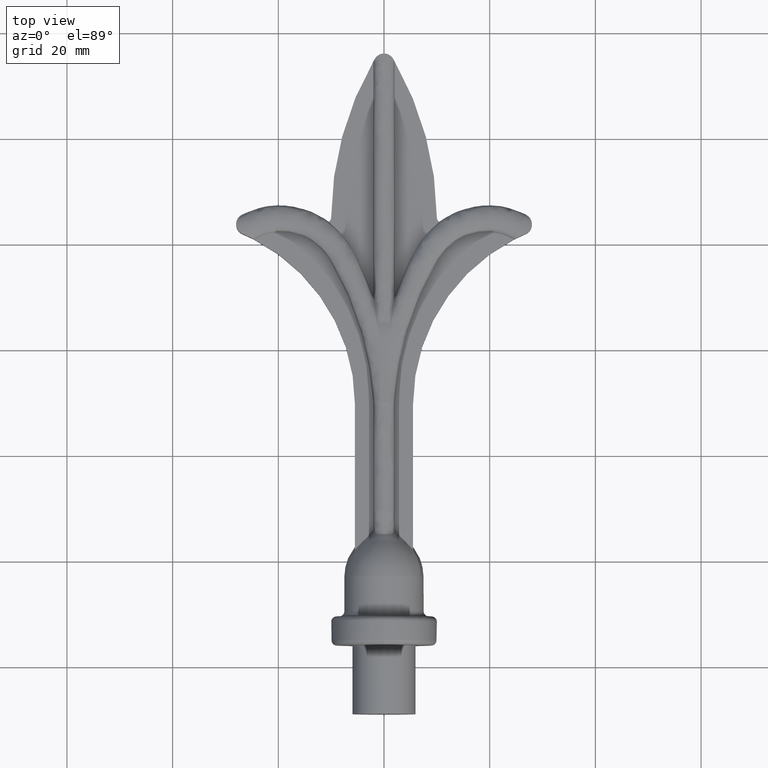
[diagram: clean part render]
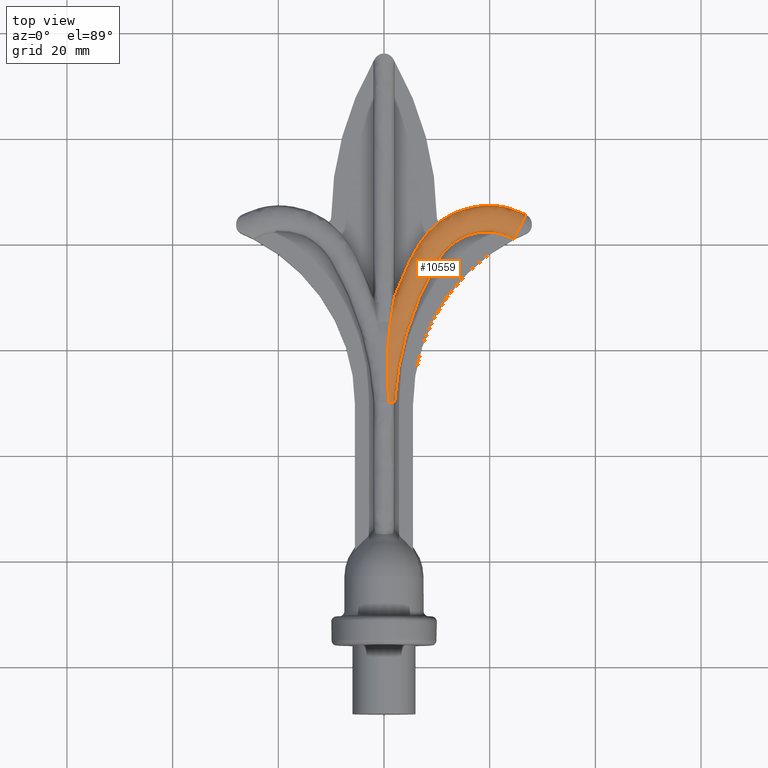
[diagram: same view with one face highlighted and labeled with its STEP entity id]
A machine part, top view. The second image highlights one B-rep face of the part: STEP entity #10559.
In plain terms, the highlighted face is a freeform B-spline surface patch.
Its self-contained STEP definition (entity closure, byte-faithful):
#50 = CARTESIAN_POINT ( 'NONE',  ( 22.65377399519052304, 21.90442117620150597, 2.015428482154284495 ) ) ;
#104 = CARTESIAN_POINT ( 'NONE',  ( 24.61884789897032277, 22.84009828689383426, 0.9380501365361845201 ) ) ;
#128 = ORIENTED_EDGE ( 'NONE', *, *, #1518, .F. ) ;
#171 = CARTESIAN_POINT ( 'NONE',  ( 9.388767710111718401, 18.61805544953372049, 1.083574775856823935 ) ) ;
#193 = CARTESIAN_POINT ( 'NONE',  ( 1.822275046699542647E-13, -9.999899012340767612, 3.500002856754159009 ) ) ;
#327 = B_SPLINE_CURVE_WITH_KNOTS ( 'NONE', 3,
 ( #4505, #12297, #8937, #6717, #6763, #3381, #12349, #10037, #13542, #974, #3482, #8988, #5577, #1079, #1024, #13636, #8884, #5634, #1182, #13491, #2328, #14633, #2229, #6671, #11344, #6816, #9042, #10083, #10130, #2278, #7910, #2127, #6872, #1134, #4606, #11294, #10229, #11151 ),
 .UNSPECIFIED., .F., .F.,
 ( 4, 2, 2, 2, 2, 2, 2, 2, 2, 2, 2, 2, 2, 2, 2, 2, 2, 2, 4 ),
 ( 1.599647270592087204E-07, 0.001412384367972311511, 0.002118496569594932512, 0.002824608771217553948, 0.004236833174462796385, 0.005649057577708038388, 0.007061281980953282127, 0.008473506384198524130, 0.009885730787443767001, 0.01129795519068900987, 0.01412240399717949388, 0.01553462840042473155, 0.01694685280366997268, 0.01977130161016044455, 0.02259575041665091641, 0.02824464802963186014, 0.03389354564261280733, 0.03954244325559375106, 0.04519134086857468785 ),
 .UNSPECIFIED. ) ;
#357 = CARTESIAN_POINT ( 'NONE',  ( 24.89631523859468487, 21.42124500145134292, 1.263273577513313262 ) ) ;
#384 = CARTESIAN_POINT ( 'NONE',  ( 1.664991924502235321, 8.081150150582923075, 2.946182603805149736 ) ) ;
#392 = CARTESIAN_POINT ( 'NONE',  ( 3.024429506837891690, 12.65772292413269007, 2.249999999999999112 ) ) ;
#401 = CARTESIAN_POINT ( 'NONE',  ( 9.227220437918614238, 18.70524337115989510, 1.047151908742425030 ) ) ;
#430 = CARTESIAN_POINT ( 'NONE',  ( 0.8170894112943596355, 1.555991863244106321, 3.392483868747679487 ) ) ;
#446 = CARTESIAN_POINT ( 'NONE',  ( 25.38313255906372845, 22.42507282063571949, 0.9437082161729408725 ) ) ;
#453 = CARTESIAN_POINT ( 'NONE',  ( 10.97097425747700683, 23.99402529289793762, 1.537978110906352835 ) ) ;
#488 = CARTESIAN_POINT ( 'NONE',  ( 10.47475883363148341, 24.14904658344193322, 2.249999999999999556 ) ) ;
#496 = CARTESIAN_POINT ( 'NONE',  ( -0.9355291820909846789, -10.00000000000000000, 1.014998227861704905 ) ) ;
#539 = CARTESIAN_POINT ( 'NONE',  ( 8.842201653637049574, 18.81535705966615524, 3.678308501744723458 ) ) ;
#551 = ORIENTED_EDGE ( 'NONE', *, *, #10067, .T. ) ;
#592 = CARTESIAN_POINT ( 'NONE',  ( 0.8716206655284397531, -5.578634823807737675, 3.586626112572214087 ) ) ;
#600 = CARTESIAN_POINT ( 'NONE',  ( 11.35047031905619264, 24.05453771702369892, 1.427759834671830763 ) ) ;
#643 = CARTESIAN_POINT ( 'NONE',  ( 25.11752299891844942, 21.87738017638413979, 3.426316611016624769 ) ) ;
#861 = CARTESIAN_POINT ( 'NONE',  ( -0.05568797769088915106, 3.619292378204540750, 1.053908288578327523 ) ) ;
#867 = CARTESIAN_POINT ( 'NONE',  ( 11.58296119081805386, 24.18750000000000355, 1.417579424405996935 ) ) ;
#888 = CARTESIAN_POINT ( 'NONE',  ( -0.1641460125971318795, 3.634865088626292540, 1.103582228979153923 ) ) ;
#911 = CARTESIAN_POINT ( 'NONE',  ( -1.312873167320049994, -5.455709696546035659, 1.788320154799647455 ) ) ;
#962 = CARTESIAN_POINT ( 'NONE',  ( 20.40607271867143524, 22.29341308197831140, 2.184910187092856226 ) ) ;
#974 = CARTESIAN_POINT ( 'NONE',  ( 20.19289493986696016, 22.25437071873053441, 2.249999999999998224 ) ) ;
#990 = CARTESIAN_POINT ( 'NONE',  ( 22.65076956668649544, 21.89342035261168817, 2.049504428314659954 ) ) ;
#1007 = EDGE_CURVE ( 'NONE', #8648, #14465, #11021, .T. ) ;
#1009 = CARTESIAN_POINT ( 'NONE',  ( 24.62448220133751775, 20.86071941310699174, 4.740606538142392523 ) ) ;
#1014 = CARTESIAN_POINT ( 'NONE',  ( -1.716218652508794795, -10.00000000000000000, 1.408882310923131431 ) ) ;
#1018 = CARTESIAN_POINT ( 'NONE',  ( 25.45106628192353071, 26.09867378031954388, 2.085502314152475112 ) ) ;
#1024 = CARTESIAN_POINT ( 'NONE',  ( 16.94133092385697736, 21.97797578725353773, 2.250000000000002220 ) ) ;
#1067 = CARTESIAN_POINT ( 'NONE',  ( 18.07317238807855730, 22.48138342559525071, 1.719248921628675486 ) ) ;
#1071 = EDGE_CURVE ( 'NONE', #14441, #12958, #7727, .T. ) ;
#1079 = CARTESIAN_POINT ( 'NONE',  ( 17.40307058314913391, 22.08023255681069585, 2.249999999999997335 ) ) ;
#1091 =( BOUNDED_CURVE ( )  B_SPLINE_CURVE ( 3, ( #3022, #1009, #13273, #3211 ),
 .UNSPECIFIED., .F., .F. ) 
 B_SPLINE_CURVE_WITH_KNOTS ( ( 4, 4 ),
 ( 3.144929692913711161, 6.281076163550978642 ),
 .UNSPECIFIED. ) 
 CURVE ( )  GEOMETRIC_REPRESENTATION_ITEM ( )  RATIONAL_B_SPLINE_CURVE ( ( 1.000000000000000000, 0.3351487254072492150, 0.3351487254072492150, 1.000000000000000000 ) ) 
 REPRESENTATION_ITEM ( '' )  );
#1134 = CARTESIAN_POINT ( 'NONE',  ( 3.291206529742098930, -0.7055149666553134358, 2.249999999999999112 ) ) ;
#1148 = CARTESIAN_POINT ( 'NONE',  ( 12.19823958235329009, 21.13294287834875007, 1.164823367633861073 ) ) ;
#1182 = CARTESIAN_POINT ( 'NONE',  ( 14.34844947528617709, 20.95491050503660091, 2.249999999999999556 ) ) ;
#1197 = CARTESIAN_POINT ( 'NONE',  ( -1.930441643308337119, -10.00000000000000178, 2.582676655377620367 ) ) ;
#1249 = CARTESIAN_POINT ( 'NONE',  ( -0.4106763324448918784, 3.667676481009810807, 1.239095013416890101 ) ) ;
#1511 = CARTESIAN_POINT ( 'NONE',  ( 5.222767065321834323, 12.74379963401825222, 0.9533735591261615072 ) ) ;
#1518 = EDGE_CURVE ( 'NONE', #12958, #13013, #13508, .T. ) ;
#1544 = CARTESIAN_POINT ( 'NONE',  ( 1.093026864984118385, 4.179168361879508353, 3.300909164943323759 ) ) ;
#1551 = CARTESIAN_POINT ( 'NONE',  ( 4.721898802155293673, 16.46859264134813117, 2.249999999999999112 ) ) ;
#1558 = CARTESIAN_POINT ( 'NONE',  ( 7.909335266317044422, 19.40967726941924454, 0.9402178467507972259 ) ) ;
#1592 = CARTESIAN_POINT ( 'NONE',  ( 1.999999999999999556, 10.07069710352590342, 2.305787425040668914 ) ) ;
#1605 = CARTESIAN_POINT ( 'NONE',  ( 1.871832753549289130, 2.913804294512897464, 3.917994145229519720 ) ) ;
#1638 = CARTESIAN_POINT ( 'NONE',  ( 0.7984979242254491849, -8.554332492686521405, 3.396158515704875480 ) ) ;
#1653 = CARTESIAN_POINT ( 'NONE',  ( 1.970177633994882660, -10.00000000000000000, 1.527363550076654253 ) ) ;
#1664 = CARTESIAN_POINT ( 'NONE',  ( 10.47444242597680386, 24.14924188241173653, 2.115527743679268990 ) ) ;
#1703 = CARTESIAN_POINT ( 'NONE',  ( 16.95275011779455809, 27.51746340972101734, 2.267473239405557894 ) ) ;
#1743 = CARTESIAN_POINT ( 'NONE',  ( 0.8247743503367599427, -8.993529385132280396, 3.388833680604617093 ) ) ;
#1755 = CARTESIAN_POINT ( 'NONE',  ( 25.91516700378811677, 26.10899808485558538, 1.730959131522782357 ) ) ;
#1795 = CARTESIAN_POINT ( 'NONE',  ( 20.44066856065811422, 27.68275755157245044, 1.950683274000023282 ) ) ;
#2012 = CARTESIAN_POINT ( 'NONE',  ( -2.000759941483444493, -10.00000000000000000, 2.248500216561841736 ) ) ;
#2017 = CARTESIAN_POINT ( 'NONE',  ( 25.94374917696612570, 25.90887317753631791, 2.198338849799287953 ) ) ;
#2039 = CARTESIAN_POINT ( 'NONE',  ( 9.335186855824044727, 18.64700975306274700, 1.070480611976746932 ) ) ;
#2067 = CARTESIAN_POINT ( 'NONE',  ( 24.62434955295685413, 20.86044588928383092, 2.405581308067329172 ) ) ;
#2117 = CARTESIAN_POINT ( 'NONE',  ( 15.66964733405339416, 21.44164566861273258, 2.189431993116858877 ) ) ;
#2121 = CARTESIAN_POINT ( 'NONE',  ( 19.87221261943530948, 27.00647907467705267, 1.687109739304471390 ) ) ;
#2127 = CARTESIAN_POINT ( 'NONE',  ( 4.725754925820213614, 4.741299643282160581, 2.250000000000000000 ) ) ;
#2163 = CARTESIAN_POINT ( 'NONE',  ( 18.08690987329524091, 22.40414028384342870, 1.813243221279624562 ) ) ;
#2168 = CARTESIAN_POINT ( 'NONE',  ( 26.01062385125398180, 25.88167126426240827, 2.232124073764892636 ) ) ;
#2221 = CARTESIAN_POINT ( 'NONE',  ( -1.350973762165066372, -5.450231084407701765, 1.849425354973960101 ) ) ;
#2229 = CARTESIAN_POINT ( 'NONE',  ( 11.14895665378619682, 18.26262553370780140, 2.250000000000009770 ) ) ;
#2278 = CARTESIAN_POINT ( 'NONE',  ( 6.703008912361073435, 10.01589497759060521, 2.250000000000000000 ) ) ;
#2292 = CARTESIAN_POINT ( 'NONE',  ( 4.876233005801971387, 12.87845692364086148, 0.9784518285621928158 ) ) ;
#2328 = CARTESIAN_POINT ( 'NONE',  ( 12.42029254657042969, 19.63991412580459084, 2.250000000000036859 ) ) ;
#2342 = CARTESIAN_POINT ( 'NONE',  ( -1.446822619493322915, -5.434067506973638828, 2.069176330081931692 ) ) ;
#2390 = CARTESIAN_POINT ( 'NONE',  ( 23.98246810133187878, 21.23495782725811054, 1.983558742420999943 ) ) ;
#2596 = CARTESIAN_POINT ( 'NONE',  ( 7.112391304558636662, 20.68677348446288988, 2.249999999999999556 ) ) ;
#2643 = CARTESIAN_POINT ( 'NONE',  ( 0.4406985737824424820, -9.987347466049293132, 3.471261713992855213 ) ) ;
#2659 = CARTESIAN_POINT ( 'NONE',  ( 22.81787294985169012, 22.56706617981623708, 1.222995480864877971 ) ) ;
#2667 = CARTESIAN_POINT ( 'NONE',  ( 24.62483542902143441, 20.86144777621306545, 2.102813419555594532 ) ) ;
#2687 = CARTESIAN_POINT ( 'NONE',  ( 0.8490466700974876879, -9.790351625994269114, 3.381771460446505895 ) ) ;
#2693 = CARTESIAN_POINT ( 'NONE',  ( 5.016452664498600278, 17.09870672286848858, 2.250000000000000888 ) ) ;
#2700 = CARTESIAN_POINT ( 'NONE',  ( 22.69301642216343851, 22.05896169989715361, 1.758062451085776079 ) ) ;
#2735 = CARTESIAN_POINT ( 'NONE',  ( 1.877855878971818049, 9.358471240947849878, 2.686654988717040116 ) ) ;
#2741 = CARTESIAN_POINT ( 'NONE',  ( 2.494505320318125552, 11.37125079946095418, 2.250000000000000000 ) ) ;
#2750 = CARTESIAN_POINT ( 'NONE',  ( 11.06399870107107120, 22.21911134735176319, 3.681482465448309593 ) ) ;
#2807 = CARTESIAN_POINT ( 'NONE',  ( 23.85380151575796148, 27.07101698519150546, 1.768976648477818658 ) ) ;
#2854 = CARTESIAN_POINT ( 'NONE',  ( 2.711428649128472479, 3.102266197604552911, 0.8328247424366664875 ) ) ;
#2907 = CARTESIAN_POINT ( 'NONE',  ( 20.38076262851300413, 25.44230529397685103, 3.654752397464813285 ) ) ;
#2953 = CARTESIAN_POINT ( 'NONE',  ( 14.70643963298623547, 23.25330710552000468, 3.650328722034779094 ) ) ;
#3022 = CARTESIAN_POINT ( 'NONE',  ( 24.61697314110987378, 20.84523556333763850, 2.254171646362637116 ) ) ;
#3110 = VERTEX_POINT ( 'NONE', #14480 ) ;
#3169 = CARTESIAN_POINT ( 'NONE',  ( 18.09714335903924010, 22.34266630139766718, 1.908826176771433625 ) ) ;
#3211 = CARTESIAN_POINT ( 'NONE',  ( 26.87271091490941188, 25.49661553200047948, 2.252636452654235288 ) ) ;
#3214 = CARTESIAN_POINT ( 'NONE',  ( 23.96192291912440808, 21.18308984813897311, 2.187444685451927828 ) ) ;
#3216 = CARTESIAN_POINT ( 'NONE',  ( 17.35146987085249393, 26.71544865942527380, 1.595829123001728744 ) ) ;
#3270 = CARTESIAN_POINT ( 'NONE',  ( 24.61677185411122792, 20.84482051075516651, 2.306252604042914101 ) ) ;
#3273 = CARTESIAN_POINT ( 'NONE',  ( 16.12445592444844777, 26.40266229427007616, 1.556082222938761195 ) ) ;
#3321 = CARTESIAN_POINT ( 'NONE',  ( 13.05551225055343068, 20.10660405571876908, 1.896370593148546391 ) ) ;
#3324 = CARTESIAN_POINT ( 'NONE',  ( 25.99529877153481294, 25.88793557697366765, 2.220923145417316391 ) ) ;
#3335 = CARTESIAN_POINT ( 'NONE',  ( 1.384750386415574130, -10.00000000000000000, 3.264617898375323790 ) ) ;
#3346 = CARTESIAN_POINT ( 'NONE',  ( 5.401987172626819600, 12.67375316816916886, 0.9548393975191454830 ) ) ;
#3350 = CARTESIAN_POINT ( 'NONE',  ( 26.01821031367974868, 25.87856042835428383, 2.249999999999999556 ) ) ;
#3369 = CARTESIAN_POINT ( 'NONE',  ( 12.50710470868220980, 20.76895355801833887, 1.354172316034753631 ) ) ;
#3381 = CARTESIAN_POINT ( 'NONE',  ( 22.48052273371741450, 21.81134387635706062, 2.249999999999997780 ) ) ;
#3398 = CARTESIAN_POINT ( 'NONE',  ( -0.1099169951440105153, 3.627078733415416867, 1.078745258778740723 ) ) ;
#3447 = CARTESIAN_POINT ( 'NONE',  ( -1.505269081967836486, -5.405307232543053786, 2.727391122472714535 ) ) ;
#3464 = B_SPLINE_CURVE_WITH_KNOTS ( 'NONE', 3,
 ( #9499, #2741, #392, #6099, #13898, #1551, #2693, #12912, #10583, #6153, #2596, #14031, #9351, #5066, #7279, #488 ),
 .UNSPECIFIED., .F., .F.,
 ( 4, 2, 2, 2, 2, 2, 2, 4 ),
 ( 0.006606490043254385769, 0.01078139490176455509, 0.01286884733101964148, 0.01495629976027472614, 0.01704375218952981080, 0.01913120461878489720, 0.02121865704803998359, 0.02330610947729506652 ),
 .UNSPECIFIED. ) ;
#3482 = CARTESIAN_POINT ( 'NONE',  ( 19.72413120687838273, 22.27856710356394032, 2.250000000000000000 ) ) ;
#3497 = CARTESIAN_POINT ( 'NONE',  ( 6.995281716088951995, 19.88407979996286912, 1.260486643651753891 ) ) ;
#3542 = CARTESIAN_POINT ( 'NONE',  ( -0.5396152933166908916, 3.682753933028929616, 1.328177999582593083 ) ) ;
#3545 = CARTESIAN_POINT ( 'NONE',  ( 26.58834281340381622, 25.62506080716702428, 2.250000000000000444 ) ) ;
#3713 = ORIENTED_EDGE ( 'NONE', *, *, #3902, .F. ) ;
#3751 =( BOUNDED_CURVE ( )  B_SPLINE_CURVE ( 3, ( #10824, #5024, #3937, #5155 ),
 .UNSPECIFIED., .F., .F. ) 
 B_SPLINE_CURVE_WITH_KNOTS ( ( 4, 4 ),
 ( 0.000000000000000000, 0.5086059046726595367 ),
 .UNSPECIFIED. ) 
 CURVE ( )  GEOMETRIC_REPRESENTATION_ITEM ( )  RATIONAL_B_SPLINE_CURVE ( ( 1.000000000000000000, 0.9785592584434594787, 0.9785592584434594787, 1.000000000000000000 ) ) 
 REPRESENTATION_ITEM ( '' )  );
#3785 = CARTESIAN_POINT ( 'NONE',  ( 0.6838425788776076875, -9.964105240841302447, 3.424794776173007538 ) ) ;
#3802 = CARTESIAN_POINT ( 'NONE',  ( 9.063566896346694435, 18.79319770106364729, 1.020559078260759645 ) ) ;
#3836 = CARTESIAN_POINT ( 'NONE',  ( 1.980305355098926245, 9.955703304162607736, 2.429022797495678621 ) ) ;
#3853 = CARTESIAN_POINT ( 'NONE',  ( 20.44188111118632278, 23.30753202606006980, 1.106788655521255382 ) ) ;
#3898 = CARTESIAN_POINT ( 'NONE',  ( 0.2828024988935784467, -5.622952954216868804, 0.9541399073106032747 ) ) ;
#3902 = EDGE_CURVE ( 'NONE', #9479, #8648, #8520, .T. ) ;
#3937 = CARTESIAN_POINT ( 'NONE',  ( 1.913767255991325911, -10.00000000000000178, 2.671581419846952965 ) ) ;
#3941 = CARTESIAN_POINT ( 'NONE',  ( 1.156218319877358791, -10.00000000000000000, 3.481361021246797360 ) ) ;
#3973 = CARTESIAN_POINT ( 'NONE',  ( 1.459315394766676377, 6.787959087721364249, 3.116524587594440288 ) ) ;
#3987 = CARTESIAN_POINT ( 'NONE',  ( 20.39879148022120603, 26.86539880480056652, 3.279017007889420299 ) ) ;
#4009 = ORIENTED_EDGE ( 'NONE', *, *, #1007, .F. ) ;
#4023 = CARTESIAN_POINT ( 'NONE',  ( 1.993991028183335956, 10.03549112986107339, 2.353936078871035065 ) ) ;
#4035 = CARTESIAN_POINT ( 'NONE',  ( 20.37848032285045008, 23.02279457361767712, 3.292293112976904190 ) ) ;
#4295 = CARTESIAN_POINT ( 'NONE',  ( 23.96664801034435044, 21.19502457257676653, 2.119327766726151641 ) ) ;
#4342 = CARTESIAN_POINT ( 'NONE',  ( 15.32834118639918941, 22.18365385408029411, 1.430685360076817680 ) ) ;
#4387 = CARTESIAN_POINT ( 'NONE',  ( -1.244935185496606866, -5.464694607167846385, 1.701106015151840234 ) ) ;
#4392 = CARTESIAN_POINT ( 'NONE',  ( 24.54829524349028347, 26.39735971179313623, 1.948013301117176521 ) ) ;
#4403 = CARTESIAN_POINT ( 'NONE',  ( 0.7435887981399322832, -10.00000000000000000, 3.499999999999999556 ) ) ;
#4440 = CARTESIAN_POINT ( 'NONE',  ( 12.59304986706982454, 20.66603194893808393, 1.427857428819797159 ) ) ;
#4443 = CARTESIAN_POINT ( 'NONE',  ( 15.21547537418272711, 26.10565319523481520, 1.528223744396669304 ) ) ;
#4498 = CARTESIAN_POINT ( 'NONE',  ( 25.74545084889599167, 25.98751519558470591, 2.144463043323173057 ) ) ;
#4503 = ORIENTED_EDGE ( 'NONE', *, *, #1071, .F. ) ;
#4505 = CARTESIAN_POINT ( 'NONE',  ( 24.61697314110987378, 20.84523556333763850, 2.254171646362637116 ) ) ;
#4574 = CARTESIAN_POINT ( 'NONE',  ( -0.9598800596367940141, -5.434433230744014409, 3.219731933626844178 ) ) ;
#4606 = CARTESIAN_POINT ( 'NONE',  ( 2.919986943536946544, -2.547756134048474674, 2.250000000000001776 ) ) ;
#4607 = CARTESIAN_POINT ( 'NONE',  ( 22.65076956668649544, 21.89342035261168817, 2.049504428314659954 ) ) ;
#4619 = CARTESIAN_POINT ( 'NONE',  ( 14.12047294958236598, 24.63733114452201534, 0.9429544806555363312 ) ) ;
#4671 = CARTESIAN_POINT ( 'NONE',  ( 11.24571863066499233, 22.23230778308894529, 0.8777881961043129122 ) ) ;
#4931 = CARTESIAN_POINT ( 'NONE',  ( 11.96684702448061088, 21.40154217615601340, 1.075419899241283339 ) ) ;
#4964 = CARTESIAN_POINT ( 'NONE',  ( 0.8473593562508177079, -9.818020446068674190, 3.382270362854599366 ) ) ;
#4980 = CARTESIAN_POINT ( 'NONE',  ( 24.62850027659701269, 20.86900477099273843, 2.068558698633711668 ) ) ;
#5012 = CARTESIAN_POINT ( 'NONE',  ( 0.9875871604779276058, 3.306007631506265643, 3.338612280648417752 ) ) ;
#5024 = CARTESIAN_POINT ( 'NONE',  ( 2.000000000000005773, -10.00000000000000178, 2.464235739769912392 ) ) ;
#5030 = CARTESIAN_POINT ( 'NONE',  ( 20.45663858710080873, 26.92325567959106181, 1.247980140855089681 ) ) ;
#5061 = CARTESIAN_POINT ( 'NONE',  ( 1.999999999999999556, 10.07148951500465373, 2.250000000000000000 ) ) ;
#5066 = CARTESIAN_POINT ( 'NONE',  ( 9.395713503163751312, 23.26475065132476061, 2.249999999999998224 ) ) ;
#5072 = CARTESIAN_POINT ( 'NONE',  ( 7.459271207350047561, 11.81233850152463205, 3.017907786898869293 ) ) ;
#5121 = CARTESIAN_POINT ( 'NONE',  ( 13.06114932926702643, 20.05089751493890304, 2.528924634477312861 ) ) ;
#5128 = CARTESIAN_POINT ( 'NONE',  ( 10.74672409745875790, 24.02599849987280578, 1.675151683169122441 ) ) ;
#5148 = CARTESIAN_POINT ( 'NONE',  ( 1.735392698828009728, 8.511043698880389030, 2.879936702575515373 ) ) ;
#5155 = CARTESIAN_POINT ( 'NONE',  ( 1.746894550110650091, -9.999999999999998224, 2.858741228396034728 ) ) ;
#5160 = CARTESIAN_POINT ( 'NONE',  ( 13.21765237769347578, 26.31445228159100580, 2.579646220189424355 ) ) ;
#5370 = CARTESIAN_POINT ( 'NONE',  ( -1.368120141080630292, -5.447629912781421169, 1.880685711116110603 ) ) ;
#5384 = CARTESIAN_POINT ( 'NONE',  ( 1.746894550110650091, -9.999999999999998224, 2.858741228396034728 ) ) ;
#5419 = CARTESIAN_POINT ( 'NONE',  ( -0.6412291567347802035, -5.536385412289198449, 1.152119986985020716 ) ) ;
#5423 = CARTESIAN_POINT ( 'NONE',  ( 25.67210180646539186, 26.01571018483321751, 2.129143538489206122 ) ) ;
#5463 = CARTESIAN_POINT ( 'NONE',  ( -0.1099169951440105153, 3.627078733415416867, 1.078745258778740723 ) ) ;
#5509 = CARTESIAN_POINT ( 'NONE',  ( 0.4059229768417577655, 3.546990882494309716, 0.8951200733611528459 ) ) ;
#5564 = CARTESIAN_POINT ( 'NONE',  ( 5.923428931082126425, 12.46869456682123811, 1.003996236970573497 ) ) ;
#5567 = CARTESIAN_POINT ( 'NONE',  ( 17.97321398454651842, 26.82764557976409847, 1.618780225993988964 ) ) ;
#5577 = CARTESIAN_POINT ( 'NONE',  ( 18.32851251397507042, 22.22197669324629743, 2.249999999999997335 ) ) ;
#5595 = CARTESIAN_POINT ( 'NONE',  ( 15.30862737729663259, 22.22509697919808147, 1.404913337985567168 ) ) ;
#5634 = CARTESIAN_POINT ( 'NONE',  ( 14.76337510132776742, 21.17412777837628823, 2.249999999999997780 ) ) ;
#5647 = CARTESIAN_POINT ( 'NONE',  ( 22.66100667026988802, 21.93176941151987691, 1.948366845079173792 ) ) ;
#5650 = CARTESIAN_POINT ( 'NONE',  ( 26.87271091490941188, 25.49661553200047948, 2.252636452654235288 ) ) ;
#5652 = CARTESIAN_POINT ( 'NONE',  ( 2.000006093207118418, -9.999999999999998224, 2.250000000000134559 ) ) ;
#5692 = CARTESIAN_POINT ( 'NONE',  ( 23.97353962097497870, 21.21242300266498759, 2.050936913910250237 ) ) ;
#5740 = CARTESIAN_POINT ( 'NONE',  ( 20.45435628143824758, 24.50374495923189144, 0.8855208563671804756 ) ) ;
#5793 = CARTESIAN_POINT ( 'NONE',  ( 22.67535147810627549, 21.98808860120702846, 1.851312210208722941 ) ) ;
#6057 = CARTESIAN_POINT ( 'NONE',  ( -1.966610256435111559, -10.00000000000000000, 2.485590509674203030 ) ) ;
#6099 = CARTESIAN_POINT ( 'NONE',  ( 3.856932054002740085, 14.57011165318400714, 2.250000000000000000 ) ) ;
#6107 = CARTESIAN_POINT ( 'NONE',  ( 1.050673057986284409, -10.00000000000000000, 0.9822314698382343945 ) ) ;
#6153 = CARTESIAN_POINT ( 'NONE',  ( 6.716424947122844991, 20.12315963595812818, 2.249999999999998224 ) ) ;
#6159 = CARTESIAN_POINT ( 'NONE',  ( 4.047294293470031334, 13.13114015080838293, 3.515859870545896992 ) ) ;
#6203 = CARTESIAN_POINT ( 'NONE',  ( 4.234546894825800933, 2.670612701839688796, 1.996404272259161727 ) ) ;
#6251 = CARTESIAN_POINT ( 'NONE',  ( 18.01402980656238029, 22.54367844088614703, 3.071104639829020044 ) ) ;
#6299 = CARTESIAN_POINT ( 'NONE',  ( 23.64651792746570180, 26.13893382758413253, 1.125830661900433460 ) ) ;
#6513 = CARTESIAN_POINT ( 'NONE',  ( 24.71163632529238185, 21.04043309728372790, 2.989436672938512451 ) ) ;
#6518 = CARTESIAN_POINT ( 'NONE',  ( 25.89047156668734573, 25.93030751397204980, 2.180885140772495845 ) ) ;
#6533 = CARTESIAN_POINT ( 'NONE',  ( -1.385266519996193990, -5.445028741155140573, 1.911946067258261106 ) ) ;
#6556 = CARTESIAN_POINT ( 'NONE',  ( 5.462046514380741513, 12.65025225794595620, 0.9563044341158936090 ) ) ;
#6563 = EDGE_LOOP ( 'NONE', ( #551, #128, #4503, #8224, #10500, #4009, #3713, #12553, #7813 ) ) ;
#6569 = CARTESIAN_POINT ( 'NONE',  ( 1.746894550110650091, -9.999999999999998224, 2.858741228396034728 ) ) ;
#6603 = CARTESIAN_POINT ( 'NONE',  ( 5.401987172626819600, 12.67375316816916886, 0.9548393975191454830 ) ) ;
#6659 = CARTESIAN_POINT ( 'NONE',  ( 5.580863361160615987, 12.60367840301554132, 0.9621086561692356875 ) ) ;
#6662 = CARTESIAN_POINT ( 'NONE',  ( 19.23156408213991853, 26.97332148050280765, 1.664595973721237687 ) ) ;
#6671 = CARTESIAN_POINT ( 'NONE',  ( 10.59220191886514684, 17.50875892013686652, 2.250000000000008438 ) ) ;
#6706 = CARTESIAN_POINT ( 'NONE',  ( 5.754641011179927546, 12.53532302690616440, 0.9790893295544619290 ) ) ;
#6717 = CARTESIAN_POINT ( 'NONE',  ( 23.13504436214022064, 21.56360661313473770, 2.249999999999995115 ) ) ;
#6763 = CARTESIAN_POINT ( 'NONE',  ( 22.91865372825261105, 21.65263170368233503, 2.249999999999997335 ) ) ;
#6782 = CARTESIAN_POINT ( 'NONE',  ( 18.04888330220630621, 22.61112496832616969, 1.597458181683624190 ) ) ;
#6816 = CARTESIAN_POINT ( 'NONE',  ( 9.606056869822205968, 15.91418307517285236, 2.250000000000003553 ) ) ;
#6833 = CARTESIAN_POINT ( 'NONE',  ( 15.11292970976348116, 22.63219669259644462, 1.203973399124293353 ) ) ;
#6872 = CARTESIAN_POINT ( 'NONE',  ( 4.191660543171381370, 2.939109039108050325, 2.250000000000000444 ) ) ;
#6883 = CARTESIAN_POINT ( 'NONE',  ( 23.07879108174414640, 23.67638721431411142, 0.9266489341151785686 ) ) ;
#6935 = CARTESIAN_POINT ( 'NONE',  ( 17.81665322072950275, 23.76970267718911600, 0.9652721940960389269 ) ) ;
#7201 = CARTESIAN_POINT ( 'NONE',  ( 20.42432695969185374, 22.64970018241750083, 1.605888825503270612 ) ) ;
#7231 = CARTESIAN_POINT ( 'NONE',  ( 0.6347639814880823295, -1.958469581052590502, 3.435379189034770686 ) ) ;
#7246 = CARTESIAN_POINT ( 'NONE',  ( 17.06767324086776583, 27.11070670095489987, 1.497586752796943754 ) ) ;
#7279 = CARTESIAN_POINT ( 'NONE',  ( 9.920992370167626362, 23.72872385143650575, 2.249999999999999112 ) ) ;
#7287 = CARTESIAN_POINT ( 'NONE',  ( 12.08668100305671445, 21.07310374675440556, 3.549412033460042970 ) ) ;
#7340 = CARTESIAN_POINT ( 'NONE',  ( 23.73362437559675442, 26.63098404159872956, 3.132014494892863876 ) ) ;
#7347 = CARTESIAN_POINT ( 'NONE',  ( 11.09839276762629012, 23.99648256798949930, 1.489386600986426057 ) ) ;
#7386 = CARTESIAN_POINT ( 'NONE',  ( 1.976115646617455868, -5.685912033488270900, 3.244521411726900784 ) ) ;
#7434 = CARTESIAN_POINT ( 'NONE',  ( 2.114303224058812436, -5.767154547280592958, 1.321034086255972628 ) ) ;
#7643 = CARTESIAN_POINT ( 'NONE',  ( 15.36549727178586444, 22.10519970491945330, 1.483637916626798559 ) ) ;
#7649 = CARTESIAN_POINT ( 'NONE',  ( 24.85265459369250962, 26.30461770292796331, 1.988422133370359557 ) ) ;
#7698 = CARTESIAN_POINT ( 'NONE',  ( -1.999165855519074553, -10.00000000000000000, 2.180109676981488054 ) ) ;
#7711 = CARTESIAN_POINT ( 'NONE',  ( 20.41513529999353693, 22.40313755053788469, 1.885149859055281318 ) ) ;
#7727 = B_SPLINE_CURVE_WITH_KNOTS ( 'NONE', 3,
 ( #867, #12288, #8877, #4443, #10124, #3273, #13484, #3216, #5567, #6662, #2121, #11143, #10028, #13280, #14392, #4392, #7649, #13433, #1018, #5423, #4498, #8928, #6518, #2017, #9930, #7849, #3324, #2168, #10077, #11187 ),
 .UNSPECIFIED., .F., .F.,
 ( 4, 2, 2, 2, 2, 2, 2, 2, 2, 2, 2, 2, 2, 2, 4 ),
 ( 0.000000000000000000, 0.003793096222633376285, 0.004741370278291718622, 0.005689644333950065296, 0.007586192445266760377, 0.009482740556583454591, 0.01137928866790014967, 0.01327583677921684475, 0.01422411083487519663, 0.01469824786270437951, 0.01493531637661897095, 0.01505385063357626493, 0.01511311776205490759, 0.01514275132629422545, 0.01517238489053354157 ),
 .UNSPECIFIED. ) ;
#7728 = CARTESIAN_POINT ( 'NONE',  ( 20.41513529999353693, 22.40313755053788469, 1.885149859055281318 ) ) ;
#7748 = CARTESIAN_POINT ( 'NONE',  ( 24.03331398643537042, 21.36291072156332760, 2.973089603800942449 ) ) ;
#7796 = CARTESIAN_POINT ( 'NONE',  ( 20.41408837298261503, 22.38270358186859355, 1.918358202402516310 ) ) ;
#7813 = ORIENTED_EDGE ( 'NONE', *, *, #13163, .F. ) ;
#7846 = CARTESIAN_POINT ( 'NONE',  ( 23.96112487650346168, 21.18104948120109654, 2.288435754803154865 ) ) ;
#7849 = CARTESIAN_POINT ( 'NONE',  ( 25.98691219670435260, 25.89135590405369669, 2.216558972700910068 ) ) ;
#7910 = CARTESIAN_POINT ( 'NONE',  ( 5.981575602953722814, 8.281968525459351582, 2.250000000000000444 ) ) ;
#7921 = CARTESIAN_POINT ( 'NONE',  ( -1.990482847212666773, -10.00000000000000000, 2.385708320301597851 ) ) ;
#7964 = CARTESIAN_POINT ( 'NONE',  ( 18.03516041293246985, 22.68284339042459408, 1.538938598482463282 ) ) ;
#8010 = CARTESIAN_POINT ( 'NONE',  ( 20.41618222700446594, 22.42357151920717584, 1.851941515708046548 ) ) ;
#8224 = ORIENTED_EDGE ( 'NONE', *, *, #10280, .F. ) ;
#8251 = CARTESIAN_POINT ( 'NONE',  ( 0.1106306295682388807, -10.00077037569061389, 3.500000000000001332 ) ) ;
#8269 = CARTESIAN_POINT ( 'NONE',  ( -0.8299839201999104077, -10.00000000000000000, 3.514127779270268093 ) ) ;
#8312 = CARTESIAN_POINT ( 'NONE',  ( 20.41826153258375243, 22.46951152723296730, 1.786966986400423618 ) ) ;
#8317 = CARTESIAN_POINT ( 'NONE',  ( 10.51227606014933968, 24.12377902168135080, 1.985787454223081117 ) ) ;
#8344 = CARTESIAN_POINT ( 'NONE',  ( 0.6598787791841492778, -1.079179211605334032, 3.430395813971617081 ) ) ;
#8362 = CARTESIAN_POINT ( 'NONE',  ( 26.79156783948172915, 25.32929675959114135, 3.082280998882066747 ) ) ;
#8397 = CARTESIAN_POINT ( 'NONE',  ( 0.8540926491550773214, -9.653044381900174997, 3.380290621349647751 ) ) ;
#8414 = CARTESIAN_POINT ( 'NONE',  ( 0.3043028189722906118, 3.234928226576806232, 3.796461871988054959 ) ) ;
#8446 = CARTESIAN_POINT ( 'NONE',  ( 0.7510959576214362166, 0.6784713788253978750, 3.408904152439301338 ) ) ;
#8459 = CARTESIAN_POINT ( 'NONE',  ( 3.106474803984404787, 13.51556525206983217, 2.911729366641588879 ) ) ;
#8489 = CARTESIAN_POINT ( 'NONE',  ( 0.7297521396862751697, -7.236219239692930572, 3.414234933230396951 ) ) ;
#8503 = CARTESIAN_POINT ( 'NONE',  ( 6.191492107588712379, 20.26972981301726406, 2.419268304135318903 ) ) ;
#8520 =( BOUNDED_CURVE ( )  B_SPLINE_CURVE ( 3, ( #6569, #3335, #4403, #13347 ),
 .UNSPECIFIED., .F., .F. ) 
 B_SPLINE_CURVE_WITH_KNOTS ( ( 4, 4 ),
 ( 0.5086059046726595367, 1.570796326794896558 ),
 .UNSPECIFIED. ) 
 CURVE ( )  GEOMETRIC_REPRESENTATION_ITEM ( )  RATIONAL_B_SPLINE_CURVE ( ( 1.000000000000000000, 0.9081685916369324207, 0.9081685916369324207, 1.000000000000000000 ) ) 
 REPRESENTATION_ITEM ( '' )  );
#8552 = CARTESIAN_POINT ( 'NONE',  ( 25.55077922795837964, 25.19024125565116989, 1.101837421388885963 ) ) ;
#8648 = VERTEX_POINT ( 'NONE', #193 ) ;
#8775 = CARTESIAN_POINT ( 'NONE',  ( 22.64776513818246428, 21.88241952902186327, 2.083580374475035413 ) ) ;
#8827 = CARTESIAN_POINT ( 'NONE',  ( 0.05518480514292863764, 3.602892683643559746, 1.007325706563750201 ) ) ;
#8873 = CARTESIAN_POINT ( 'NONE',  ( 15.41445139154029498, 22.00078161905027230, 1.566832966522687443 ) ) ;
#8877 = CARTESIAN_POINT ( 'NONE',  ( 13.73324974124276387, 25.53268780416835071, 1.483167805282988416 ) ) ;
#8884 = CARTESIAN_POINT ( 'NONE',  ( 15.61195498000185644, 21.55405025663272056, 2.249999999999998668 ) ) ;
#8899 = CARTESIAN_POINT ( 'NONE',  ( 5.341927830872897687, 12.69725407839238152, 0.9533743609223973570 ) ) ;
#8922 = CARTESIAN_POINT ( 'NONE',  ( 9.694446526195065417, 18.45227965233609169, 1.174734321855877894 ) ) ;
#8928 = CARTESIAN_POINT ( 'NONE',  ( 25.85432479444428111, 25.94469044492985432, 2.171357269204156282 ) ) ;
#8937 = CARTESIAN_POINT ( 'NONE',  ( 23.77879521761375159, 21.27693553004967697, 2.249999999999995559 ) ) ;
#8975 = CARTESIAN_POINT ( 'NONE',  ( 9.833156537134522424, 18.37653696805102044, 1.230497935235668194 ) ) ;
#8988 = CARTESIAN_POINT ( 'NONE',  ( 18.79269039057967561, 22.26236030581272018, 2.250000000000000000 ) ) ;
#9042 = CARTESIAN_POINT ( 'NONE',  ( 9.169502339526454548, 15.08077979952537540, 2.250000000000001332 ) ) ;
#9055 = CARTESIAN_POINT ( 'NONE',  ( 20.42132645721334328, 22.55281775006383072, 1.694048167235552516 ) ) ;
#9106 = CARTESIAN_POINT ( 'NONE',  ( 24.68824991110007261, 20.99220980659517366, 1.808315285439569875 ) ) ;
#9158 = CARTESIAN_POINT ( 'NONE',  ( 18.01184477679375462, 22.80197837678593942, 1.457170911036221650 ) ) ;
#9351 = CARTESIAN_POINT ( 'NONE',  ( 8.418664750685946885, 22.28396874645196846, 2.249999999999997780 ) ) ;
#9394 = CARTESIAN_POINT ( 'NONE',  ( 0.2210169062726403677, -9.997994292929650584, 3.494292596104019655 ) ) ;
#9407 = CARTESIAN_POINT ( 'NONE',  ( 12.08423699237343385, 21.26563531822782593, 1.116175227650189283 ) ) ;
#9443 = CARTESIAN_POINT ( 'NONE',  ( 1.930480022884340396, 9.665981623857556215, 2.578859183070260741 ) ) ;
#9460 = CARTESIAN_POINT ( 'NONE',  ( -0.2681489129738224841, 3.649317850448150047, 1.155413027684707439 ) ) ;
#9479 = VERTEX_POINT ( 'NONE', #5384 ) ;
#9490 = CARTESIAN_POINT ( 'NONE',  ( 1.842035217767148847, 9.147299553863454946, 2.739645986121322263 ) ) ;
#9499 = CARTESIAN_POINT ( 'NONE',  ( 1.999999999999999556, 10.07148951500465373, 2.250000000000000000 ) ) ;
#9506 = CARTESIAN_POINT ( 'NONE',  ( 9.483793219406800645, 24.13034088298211088, 2.084462854298545498 ) ) ;
#9552 = CARTESIAN_POINT ( 'NONE',  ( 6.449667963626812828, 12.19110374187995305, 3.574461334415811375 ) ) ;
#9602 = CARTESIAN_POINT ( 'NONE',  ( 10.07476060540627394, 18.17126878126805067, 3.368266874179758563 ) ) ;
#9649 = CARTESIAN_POINT ( 'NONE',  ( 13.27768275932916886, 26.25689456900005680, 1.782503304868370941 ) ) ;
#9700 = CARTESIAN_POINT ( 'NONE',  ( 23.42877219125543320, 25.34164994205602639, 3.595482368972072962 ) ) ;
#9757 = CARTESIAN_POINT ( 'NONE',  ( 18.05525861028005252, 22.57733642312751599, 1.627699542584139403 ) ) ;
#9928 = CARTESIAN_POINT ( 'NONE',  ( 22.64063114461398740, 21.86715111220897612, 2.352211353273554018 ) ) ;
#9930 = CARTESIAN_POINT ( 'NONE',  ( 25.96140368410506483, 25.90173023347025705, 2.204619015681459793 ) ) ;
#9953 = CARTESIAN_POINT ( 'NONE',  ( 12.27159020361795605, 21.04706442478779138, 1.202568068909723120 ) ) ;
#9976 = CARTESIAN_POINT ( 'NONE',  ( 12.41237421844339828, 20.88142978365464586, 1.285341955235194122 ) ) ;
#10024 = CARTESIAN_POINT ( 'NONE',  ( -1.983757243771040679, -10.00000000000000000, 2.079579458102091660 ) ) ;
#10028 = CARTESIAN_POINT ( 'NONE',  ( 21.76814593452674629, 26.94389394121255066, 1.751140279966636015 ) ) ;
#10037 = CARTESIAN_POINT ( 'NONE',  ( 21.58554758046971145, 22.06112451901470095, 2.250000000000000888 ) ) ;
#10067 = EDGE_CURVE ( 'NONE', #3110, #13013, #1091, .T. ) ;
#10075 = CARTESIAN_POINT ( 'NONE',  ( 22.64309314196627554, 21.86617837998923974, 2.151540402112638528 ) ) ;
#10077 = CARTESIAN_POINT ( 'NONE',  ( 26.01911763756968554, 25.87818838492925266, 2.239916922914037656 ) ) ;
#10083 = CARTESIAN_POINT ( 'NONE',  ( 8.313999916599685847, 13.40892815939250760, 2.250000000000000444 ) ) ;
#10098 = CARTESIAN_POINT ( 'NONE',  ( -1.368120141080630292, -5.447629912781421169, 1.880685711116110603 ) ) ;
#10118 = CARTESIAN_POINT ( 'NONE',  ( 9.442348564399392075, 18.58910114600469399, 1.096668939736900938 ) ) ;
#10124 = CARTESIAN_POINT ( 'NONE',  ( 15.51747638631542614, 26.21147706342360806, 1.537375530802591594 ) ) ;
#10130 = CARTESIAN_POINT ( 'NONE',  ( 7.897798575652227981, 12.56700727343634760, 2.250000000000000444 ) ) ;
#10144 = CARTESIAN_POINT ( 'NONE',  ( -1.999303641126846109, -10.00000000000000000, 2.282982894340960911 ) ) ;
#10197 = CARTESIAN_POINT ( 'NONE',  ( 8.898919653337467039, 18.88138480336622749, 1.002187822941230877 ) ) ;
#10229 = CARTESIAN_POINT ( 'NONE',  ( 2.132571979410398555, -8.126393834641481462, 2.250000000000269562 ) ) ;
#10242 = CARTESIAN_POINT ( 'NONE',  ( 3.876456465209380919, 13.26487167913330900, 1.125080358092716004 ) ) ;
#10280 = EDGE_CURVE ( 'NONE', #11940, #14441, #13377, .T. ) ;
#10294 = CARTESIAN_POINT ( 'NONE',  ( 24.65992304519750533, 20.93379919787667376, 1.902925595859554564 ) ) ;
#10297 = CARTESIAN_POINT ( 'NONE',  ( 26.30390664049340899, 25.75336827463097578, 2.250000000000000000 ) ) ;
#10500 = ORIENTED_EDGE ( 'NONE', *, *, #10959, .F. ) ;
#10524 = CARTESIAN_POINT ( 'NONE',  ( 0.5497574092091946918, -9.981587840122758237, 3.453942945078218862 ) ) ;
#10544 = CARTESIAN_POINT ( 'NONE',  ( 3.182724864841109280, 13.52183947689682952, 1.625055928455176435 ) ) ;
#10559 = ADVANCED_FACE ( 'NONE', ( #13556 ), #13503, .T. ) ;
#10577 = CARTESIAN_POINT ( 'NONE',  ( 1.972408887254156529, 9.909815113014309063, 2.458679044196641517 ) ) ;
#10583 = CARTESIAN_POINT ( 'NONE',  ( 5.983458570131105603, 18.94928351144386625, 2.249999999999998224 ) ) ;
#10594 = CARTESIAN_POINT ( 'NONE',  ( 5.047481414746151529, 12.81203092452791203, 0.9618394786859367773 ) ) ;
#10622 = CARTESIAN_POINT ( 'NONE',  ( 0.6888457618797619864, -6.357268802590827050, 3.423652526577683819 ) ) ;
#10637 = CARTESIAN_POINT ( 'NONE',  ( 26.23019824370513930, 24.17174054005917583, 3.572538680428362756 ) ) ;
#10685 = CARTESIAN_POINT ( 'NONE',  ( 25.77733479117556215, 25.76102948309108953, 3.098776187840814433 ) ) ;
#10738 = CARTESIAN_POINT ( 'NONE',  ( 2.661970803240009786, -5.789958898539493859, 1.994107166040876011 ) ) ;
#10783 = CARTESIAN_POINT ( 'NONE',  ( 25.30104473961430500, 24.55976628122897409, 3.580148450669669913 ) ) ;
#10824 = CARTESIAN_POINT ( 'NONE',  ( 2.000006093207118418, -9.999999999999998224, 2.250000000000134559 ) ) ;
#10959 = EDGE_CURVE ( 'NONE', #14465, #11940, #3464, .T. ) ;
#11021 = B_SPLINE_CURVE_WITH_KNOTS ( 'NONE', 3,
 ( #12767, #8251, #9394, #2643, #10524, #3785, #11648, #13750, #13939, #13981, #14121, #4964, #2687, #8397, #12860, #1743, #1638, #8489, #10622, #13042, #11842, #7231, #8344, #8446, #430, #5012, #1544, #11894, #3973, #384, #5148, #9490, #2735, #9443, #11691, #10577, #3836, #4023, #1592, #5061 ),
 .UNSPECIFIED., .F., .F.,
 ( 4, 2, 2, 2, 2, 2, 2, 2, 2, 2, 2, 2, 2, 2, 2, 2, 2, 2, 2, 4 ),
 ( 0.000000000000000000, 0.0003313910331067513346, 0.0006627820662135026691, 0.0007456298244901904621, 0.0008284775827668783635, 0.0009113253410435662649, 0.0009941730993202539494, 0.001325564132426989509, 0.002651128264853936951, 0.005302256529707827064, 0.007953384794561715876, 0.01060451305941560556, 0.01325564132426949523, 0.01590676958912338665, 0.01855789785397727806, 0.01988346198640422030, 0.02054624405261769662, 0.02087763508572443305, 0.02104333060227779953, 0.02120902611883116254 ),
 .UNSPECIFIED. ) ;
#11045 = CARTESIAN_POINT ( 'NONE',  ( 9.546689564418684881, 18.53260696623859261, 1.125224219321078856 ) ) ;
#11071 = CARTESIAN_POINT ( 'NONE',  ( 15.28891356819407754, 22.26654010431586528, 1.379141315894316433 ) ) ;
#11094 = CARTESIAN_POINT ( 'NONE',  ( 20.41201936152965146, 22.34767655075684445, 1.984967570427987216 ) ) ;
#11140 = CARTESIAN_POINT ( 'NONE',  ( 0.2278349961386788858, 3.575997224331086688, 0.9466558805418542333 ) ) ;
#11143 = CARTESIAN_POINT ( 'NONE',  ( 21.13954656349650207, 26.99139668730311925, 1.730320148217785237 ) ) ;
#11151 = CARTESIAN_POINT ( 'NONE',  ( 2.000006093207118418, -9.999999999999998224, 2.250000000000134559 ) ) ;
#11183 = CARTESIAN_POINT ( 'NONE',  ( -1.955833726452750110, -10.00000000000000000, 1.981435972271305745 ) ) ;
#11187 = CARTESIAN_POINT ( 'NONE',  ( 26.01821031367974868, 25.87856042835428383, 2.249999999999999556 ) ) ;
#11231 = CARTESIAN_POINT ( 'NONE',  ( 12.34341884546504708, 20.96269767156887198, 1.242994440947410073 ) ) ;
#11257 = CARTESIAN_POINT ( 'NONE',  ( 24.62483542902143441, 20.86144777621306545, 2.102813419555594532 ) ) ;
#11294 = CARTESIAN_POINT ( 'NONE',  ( 2.337768139618806806, -6.257629043695626336, 2.250000000000001332 ) ) ;
#11308 = CARTESIAN_POINT ( 'NONE',  ( -1.231049141920021572, 3.753767575659736178, 1.891873195735938262 ) ) ;
#11344 = CARTESIAN_POINT ( 'NONE',  ( 10.33624176415837326, 17.11654057984210198, 2.250000000000003109 ) ) ;
#11367 = CARTESIAN_POINT ( 'NONE',  ( 10.45826154561710908, 23.10813465116660836, 1.063975455315814944 ) ) ;
#11417 = CARTESIAN_POINT ( 'NONE',  ( -1.642832799004165123, -10.00000000000000000, 3.146532602965915526 ) ) ;
#11648 = CARTESIAN_POINT ( 'NONE',  ( 0.7105884268252442570, -9.960016484905132472, 3.418574239651624769 ) ) ;
#11660 = CARTESIAN_POINT ( 'NONE',  ( 24.00169698776886307, 21.28347706732235167, 1.885806900867221136 ) ) ;
#11691 = CARTESIAN_POINT ( 'NONE',  ( 1.947945627165463600, 9.767581954121022036, 2.538460223229800583 ) ) ;
#11708 = CARTESIAN_POINT ( 'NONE',  ( 24.20695492728201970, 21.80128136257829397, 1.249914476134828867 ) ) ;
#11722 = CARTESIAN_POINT ( 'NONE',  ( 12.30750452454150157, 21.00488104817833346, 1.222781254928566597 ) ) ;
#11730 = VERTEX_POINT ( 'NONE', #5652 ) ;
#11759 = CARTESIAN_POINT ( 'NONE',  ( 7.535521268206753831, 11.81861272635162230, 1.731234348712455073 ) ) ;
#11810 = CARTESIAN_POINT ( 'NONE',  ( 17.20776244074456685, 26.16592160177500404, 3.477127675426160636 ) ) ;
#11842 = CARTESIAN_POINT ( 'NONE',  ( 0.6224160360983791440, -3.717894380796773035, 3.437934225544267530 ) ) ;
#11855 = CARTESIAN_POINT ( 'NONE',  ( 4.040993451674182779, 2.602350086077846569, 2.924515337212995725 ) ) ;
#11894 = CARTESIAN_POINT ( 'NONE',  ( 1.329092653989006223, 5.919913474722485525, 3.188647262910140778 ) ) ;
#11907 = CARTESIAN_POINT ( 'NONE',  ( 22.86104534553387779, 22.87910332878601238, 3.396300641186818403 ) ) ;
#11914 = CARTESIAN_POINT ( 'NONE',  ( 11.47402502099891919, 24.10933931165377686, 1.414476643553557178 ) ) ;
#11940 = VERTEX_POINT ( 'NONE', #12913 ) ;
#11975 = EDGE_CURVE ( 'NONE', #11730, #9479, #3751, .T. ) ;
#12132 = CARTESIAN_POINT ( 'NONE',  ( 18.06163391835379528, 22.54354787792885872, 1.657940903484654172 ) ) ;
#12176 = CARTESIAN_POINT ( 'NONE',  ( 23.97009381565966279, 21.20372378762088061, 2.085132340318200495 ) ) ;
#12181 = CARTESIAN_POINT ( 'NONE',  ( 15.45666009309885958, 21.90959350570105713, 1.653334909457967239 ) ) ;
#12227 = CARTESIAN_POINT ( 'NONE',  ( -1.999303641126846109, -10.00000000000000000, 2.282982894340960911 ) ) ;
#12283 = CARTESIAN_POINT ( 'NONE',  ( 10.60938042224345423, 17.95061268326993797, 1.600058646703114817 ) ) ;
#12288 = CARTESIAN_POINT ( 'NONE',  ( 12.62091818340417682, 24.93222448543499326, 1.447143095383913503 ) ) ;
#12297 = CARTESIAN_POINT ( 'NONE',  ( 24.19831013008752407, 21.06089616784457874, 2.250000000000000888 ) ) ;
#12338 = CARTESIAN_POINT ( 'NONE',  ( 22.66647385895476674, 22.01271293480415636, 2.940149762690034585 ) ) ;
#12349 = CARTESIAN_POINT ( 'NONE',  ( 22.25867018858491164, 21.88062543786392666, 2.250000000000000444 ) ) ;
#12463 = CARTESIAN_POINT ( 'NONE',  ( -1.218815426725037065, 3.666581722341665905, 2.632882342165558498 ) ) ;
#12515 = CARTESIAN_POINT ( 'NONE',  ( 17.55197981994299639, 24.99250078426529598, 0.8793642191632597971 ) ) ;
#12553 = ORIENTED_EDGE ( 'NONE', *, *, #11975, .F. ) ;
#12564 = CARTESIAN_POINT ( 'NONE',  ( 14.67622952689367999, 23.53004666013016788, 0.8907288587415980174 ) ) ;
#12767 = CARTESIAN_POINT ( 'NONE',  ( 1.822275046699542647E-13, -9.999899012340767612, 3.500002856754159009 ) ) ;
#12829 = CARTESIAN_POINT ( 'NONE',  ( 24.02648759683026114, 21.34602113022098280, 1.791647846693687596 ) ) ;
#12860 = CARTESIAN_POINT ( 'NONE',  ( 0.8481300889120864106, -9.543023374926791647, 3.382044246763818762 ) ) ;
#12874 = CARTESIAN_POINT ( 'NONE',  ( 9.627425864129213195, 23.90644641173014051, 2.872955024694556325 ) ) ;
#12912 = CARTESIAN_POINT ( 'NONE',  ( 5.646106722118942933, 18.33834818294317515, 2.250000000000000000 ) ) ;
#12913 = CARTESIAN_POINT ( 'NONE',  ( 10.47475883363148341, 24.14904658344193322, 2.249999999999999556 ) ) ;
#12918 = CARTESIAN_POINT ( 'NONE',  ( 26.49580780385042189, 24.71943318431075554, 1.089930285584679082 ) ) ;
#12958 = VERTEX_POINT ( 'NONE', #13901 ) ;
#12964 = CARTESIAN_POINT ( 'NONE',  ( 10.87855021390651267, 17.78561876821365928, 2.209485213696193995 ) ) ;
#13012 = CARTESIAN_POINT ( 'NONE',  ( 15.54922982323943792, 21.63374368104194900, 2.810779897821942708 ) ) ;
#13013 = VERTEX_POINT ( 'NONE', #14078 ) ;
#13019 = CARTESIAN_POINT ( 'NONE',  ( 11.58296119081805386, 24.18750000000000355, 1.417579424405996935 ) ) ;
#13042 = CARTESIAN_POINT ( 'NONE',  ( 0.6352422687926116973, -4.598246563847242285, 3.435405058613094642 ) ) ;
#13056 = CARTESIAN_POINT ( 'NONE',  ( 6.698967482130008477, 19.97352920082726868, 3.154541946541638442 ) ) ;
#13062 = CARTESIAN_POINT ( 'NONE',  ( 10.64859008722170763, 24.06077216951886300, 1.765367677158544923 ) ) ;
#13163 = EDGE_CURVE ( 'NONE', #3110, #11730, #327, .T. ) ;
#13273 = CARTESIAN_POINT ( 'NONE',  ( 26.86797655706363486, 25.48685318396614008, 4.739079988170534996 ) ) ;
#13277 = CARTESIAN_POINT ( 'NONE',  ( 6.902965409992999568, 12.08061436088750895, 1.198906448006588743 ) ) ;
#13280 = CARTESIAN_POINT ( 'NONE',  ( 23.01439248359270806, 26.77077297087561192, 1.809327753650211035 ) ) ;
#13305 = CARTESIAN_POINT ( 'NONE',  ( -1.997847340770247504, -10.00000000000000000, 2.317465572120080086 ) ) ;
#13330 = CARTESIAN_POINT ( 'NONE',  ( -1.166846535602994006, -5.474384695960947234, 1.618532660401390544 ) ) ;
#13347 = CARTESIAN_POINT ( 'NONE',  ( 1.822275046699542647E-13, -9.999899012340767612, 3.500002856754159009 ) ) ;
#13356 = CARTESIAN_POINT ( 'NONE',  ( 9.388767710111718401, 18.61805544953372049, 1.083574775856823935 ) ) ;
#13377 = B_SPLINE_CURVE_WITH_KNOTS ( 'NONE', 3,
 ( #14141, #1664, #8317, #13062, #5128, #453, #7347, #600, #11914, #13019 ),
 .UNSPECIFIED., .F., .F.,
 ( 4, 2, 2, 2, 4 ),
 ( 0.000000000000000000, 0.0003970955290795103246, 0.0007941910581590201071, 0.001191286587238529890, 0.001588382116318039564 ),
 .UNSPECIFIED. ) ;
#13384 = CARTESIAN_POINT ( 'NONE',  ( 24.62117058144585258, 20.85389078143339248, 2.137068140477477396 ) ) ;
#13431 = CARTESIAN_POINT ( 'NONE',  ( 20.40899957415202692, 22.31222108989851449, 2.085054761611558671 ) ) ;
#13433 = CARTESIAN_POINT ( 'NONE',  ( 25.30224947893724519, 26.15188029317184970, 2.059976686626087350 ) ) ;
#13478 = CARTESIAN_POINT ( 'NONE',  ( 18.13791759605370402, 22.06703109790449702, 2.489194145203091679 ) ) ;
#13484 = CARTESIAN_POINT ( 'NONE',  ( 16.42982806867929213, 26.48824394125123050, 1.565648982770499353 ) ) ;
#13491 = CARTESIAN_POINT ( 'NONE',  ( 13.14684680056945609, 20.21926707694568748, 2.250000000000000000 ) ) ;
#13503 = B_SPLINE_SURFACE_WITH_KNOTS ( 'NONE', 3, 3, ( 
 ( #10144, #10098, #3398, #3346, #13356, #14508, #5595, #14466, #7728, #990, #13509, #11257 ),
 ( #13305, #6533, #888, #8899, #2039, #9953, #11071, #6782, #8010, #50, #5692, #4980 ),
 ( #7921, #13655, #9460, #1511, #401, #1148, #13557, #7964, #8312, #5647, #2390, #14650 ),
 ( #6057, #2342, #1249, #10594, #3802, #9407, #13603, #9158, #9055, #5793, #11660, #10294 ),
 ( #1197, #13949, #3542, #2292, #10197, #4931, #6833, #13705, #7201, #2700, #12829, #9106 ),
 ( #11417, #3447, #11308, #10242, #1558, #4671, #12564, #6935, #3853, #2659, #11708, #357 ),
 ( #8269, #4574, #12463, #10544, #3497, #11367, #4619, #12515, #5740, #6883, #104, #446 ),
 ( #3941, #592, #8414, #8459, #8503, #9506, #9649, #7246, #5030, #6299, #8552, #12918 ),
 ( #14134, #7386, #1605, #6159, #13056, #12874, #5160, #1703, #1795, #2807, #1755, #14082 ),
 ( #1653, #10738, #11855, #9552, #539, #2750, #14038, #11810, #3987, #7340, #10685, #8362 ),
 ( #6107, #7434, #6203, #5072, #9602, #7287, #2953, #13992, #2907, #9700, #10783, #10637 ),
 ( #496, #3898, #2854, #11759, #12964, #5121, #13012, #6251, #4035, #11907, #14181, #643 ),
 ( #1014, #5419, #14482, #13277, #12283, #3321, #2117, #13478, #14438, #12338, #7748, #6513 ),
 ( #11183, #13330, #5509, #5564, #8975, #4440, #12181, #3169, #962, #9928, #14388, #2067 ),
 ( #10024, #4387, #11140, #6706, #8922, #3369, #8873, #2163, #13431, #14581, #7846, #3270 ),
 ( #7698, #911, #8827, #6659, #11045, #9976, #7643, #1067, #11094, #10075, #3214, #14531 ),
 ( #2012, #2221, #861, #6556, #10118, #11231, #4342, #12132, #7796, #8775, #4295, #13384 ),
 ( #12227, #5370, #5463, #6603, #171, #11722, #14239, #9757, #7711, #4607, #12176, #2667 ) ),
 .UNSPECIFIED., .T., .F., .F.,
 ( 4, 1, 1, 1, 1, 2, 2, 2, 1, 1, 1, 1, 4 ),
 ( 4, 1, 1, 1, 1, 1, 1, 1, 1, 4 ),
 ( 0.000000000000000000, 0.01249999999999995559, 0.02499999999999991118, 0.03750000000000008882, 0.05000000000000004441, 0.2500000000000000000, 0.5000000000000000000, 0.7500000000000000000, 0.9499999999999999556, 0.9625000000000000222, 0.9749999999999999778, 0.9875000000000000444, 1.000000000000000000 ),
 ( 0.000000000000000000, 0.2655536469427997592, 0.5293554631480518191, 0.6151437456485686628, 0.6947161987927170657, 0.7730840831116569944, 0.8311192099081239348, 0.8883450198479363458, 0.9445889349024432224, 1.000000000000000000 ),
 .UNSPECIFIED. ) ;
#13508 = B_SPLINE_CURVE_WITH_KNOTS ( 'NONE', 3,
 ( #3350, #10297, #3545, #5650 ),
 .UNSPECIFIED., .F., .F.,
 ( 4, 4 ),
 ( 0.03979605111757839042, 0.04072841699986464586 ),
 .UNSPECIFIED. ) ;
#13509 = CARTESIAN_POINT ( 'NONE',  ( 23.97009381565966279, 21.20372378762088061, 2.085132340318200495 ) ) ;
#13542 = CARTESIAN_POINT ( 'NONE',  ( 21.12685482937731152, 22.14551076079942149, 2.249999999999998668 ) ) ;
#13556 = FACE_OUTER_BOUND ( 'NONE', #6563, .T. ) ;
#13557 = CARTESIAN_POINT ( 'NONE',  ( 15.24795615644327462, 22.35229914289645947, 1.329975465829964287 ) ) ;
#13603 = CARTESIAN_POINT ( 'NONE',  ( 15.18233414080095223, 22.48874740051566690, 1.263384207193893438 ) ) ;
#13636 = CARTESIAN_POINT ( 'NONE',  ( 16.04736835590449573, 21.71527909538065515, 2.250000000000001776 ) ) ;
#13655 = CARTESIAN_POINT ( 'NONE',  ( -1.415106302039858877, -5.440200536821500954, 1.974706109327271752 ) ) ;
#13705 = CARTESIAN_POINT ( 'NONE',  ( 17.98598335557815275, 22.93180407447128388, 1.381537182501375138 ) ) ;
#13750 = CARTESIAN_POINT ( 'NONE',  ( 0.7626597695790220399, -9.946780513416685565, 3.405681332686232299 ) ) ;
#13898 = CARTESIAN_POINT ( 'NONE',  ( 4.140983253953586463, 15.20476837697043848, 2.249999999999999556 ) ) ;
#13901 = CARTESIAN_POINT ( 'NONE',  ( 26.01821031367974868, 25.87856042835428383, 2.249999999999999556 ) ) ;
#13939 = CARTESIAN_POINT ( 'NONE',  ( 0.7889487505574711568, -9.937701954723015874, 3.398711765576718058 ) ) ;
#13949 = CARTESIAN_POINT ( 'NONE',  ( -1.465811153085106344, -5.429030613674199479, 2.163588876784750870 ) ) ;
#13981 = CARTESIAN_POINT ( 'NONE',  ( 0.8281505544419913711, -9.899748878370399297, 3.387882132643734945 ) ) ;
#13992 = CARTESIAN_POINT ( 'NONE',  ( 17.52972322748714618, 24.66188435757574027, 3.689327173462702447 ) ) ;
#14031 = CARTESIAN_POINT ( 'NONE',  ( 7.963832617506120037, 21.76692377047737992, 2.249999999999999112 ) ) ;
#14038 = CARTESIAN_POINT ( 'NONE',  ( 14.00620474179561548, 24.65672727687951493, 3.610527103839440421 ) ) ;
#14078 = CARTESIAN_POINT ( 'NONE',  ( 26.87271091490941188, 25.49661553200047948, 2.252636452654235288 ) ) ;
#14082 = CARTESIAN_POINT ( 'NONE',  ( 26.93816174250498463, 25.63157655077806396, 1.712092162006743301 ) ) ;
#14121 = CARTESIAN_POINT ( 'NONE',  ( 0.8373438108153099524, -9.872255483347045057, 3.385177200527288210 ) ) ;
#14134 = CARTESIAN_POINT ( 'NONE',  ( 2.028429648258830653, -10.00000000000000000, 2.906670661241423481 ) ) ;
#14141 = CARTESIAN_POINT ( 'NONE',  ( 10.47475883363148341, 24.14904658344193322, 2.249999999999999556 ) ) ;
#14181 = CARTESIAN_POINT ( 'NONE',  ( 24.36911341062624459, 22.20962331247163490, 3.416361165816969248 ) ) ;
#14239 = CARTESIAN_POINT ( 'NONE',  ( 15.30862737729663259, 22.22509697919808147, 1.404913337985567168 ) ) ;
#14388 = CARTESIAN_POINT ( 'NONE',  ( 23.96640646406842734, 21.19434143674955351, 2.387880008949887500 ) ) ;
#14392 = CARTESIAN_POINT ( 'NONE',  ( 23.63204448340715658, 26.64512161172747184, 1.846538488119730870 ) ) ;
#14438 = CARTESIAN_POINT ( 'NONE',  ( 20.38912438974113783, 22.27782395485864342, 2.780222716681158168 ) ) ;
#14441 = VERTEX_POINT ( 'NONE', #14640 ) ;
#14465 = VERTEX_POINT ( 'NONE', #14551 ) ;
#14466 = CARTESIAN_POINT ( 'NONE',  ( 18.05525861028005252, 22.57733642312751599, 1.627699542584139403 ) ) ;
#14480 = CARTESIAN_POINT ( 'NONE',  ( 24.61697314110987378, 20.84523556333763850, 2.254171646362637116 ) ) ;
#14482 = CARTESIAN_POINT ( 'NONE',  ( 1.501658237078032920, 3.361397746008024878, 0.6402891743714568262 ) ) ;
#14508 = CARTESIAN_POINT ( 'NONE',  ( 12.30750452454150157, 21.00488104817833346, 1.222781254928566597 ) ) ;
#14531 = CARTESIAN_POINT ( 'NONE',  ( 24.61641914074552062, 20.84409320818435418, 2.205262919611165273 ) ) ;
#14551 = CARTESIAN_POINT ( 'NONE',  ( 1.999999999999999556, 10.07148951500465373, 2.250000000000000000 ) ) ;
#14581 = CARTESIAN_POINT ( 'NONE',  ( 22.63997629105995202, 21.85856107487997591, 2.252534262118705222 ) ) ;
#14633 = CARTESIAN_POINT ( 'NONE',  ( 11.45185035667598861, 18.62602086206925733, 2.250000000000036415 ) ) ;
#14640 = CARTESIAN_POINT ( 'NONE',  ( 11.58296119081805386, 24.18750000000000355, 1.417579424405996935 ) ) ;
#14650 = CARTESIAN_POINT ( 'NONE',  ( 24.63827033496950136, 20.88915084217177665, 2.001023440474402282 ) ) ;